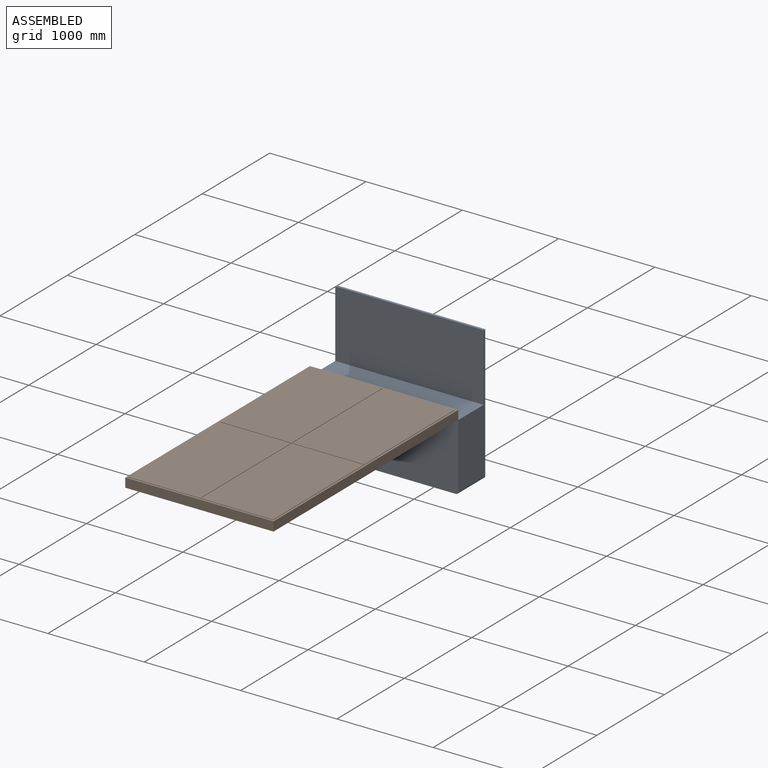
[diagram: assembled view]
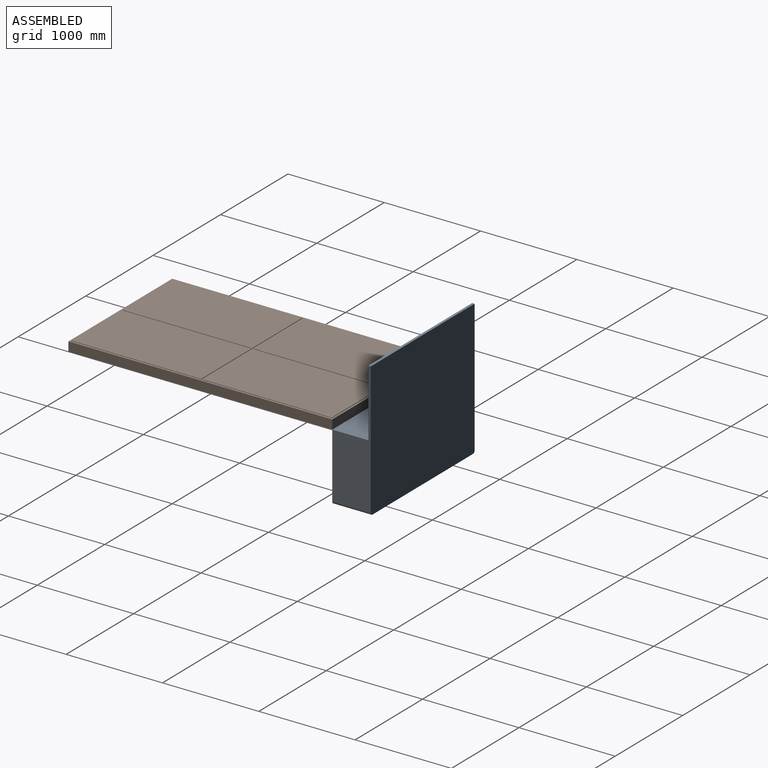
[diagram: assembled view, second angle]
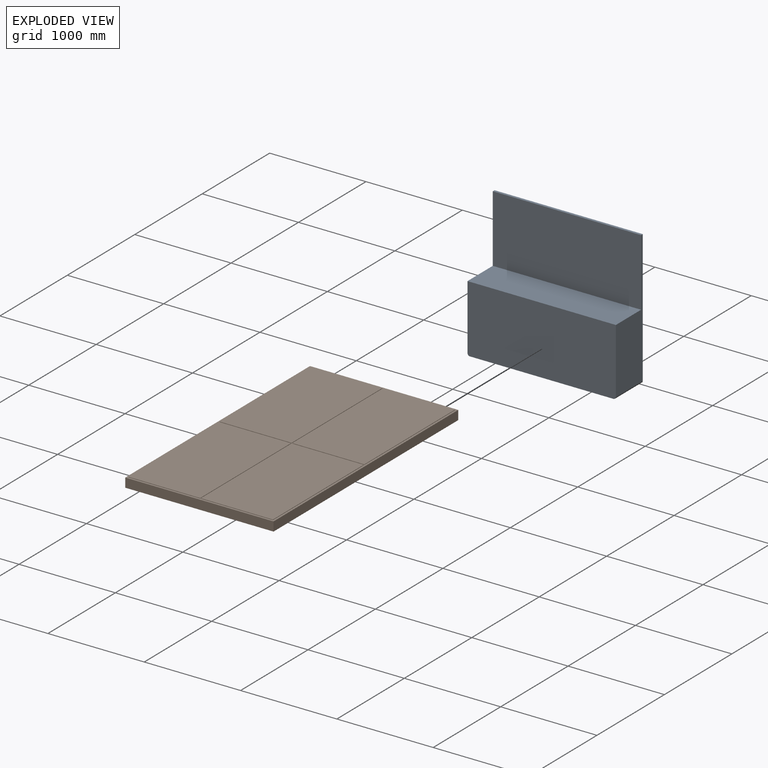
[diagram: exploded view]
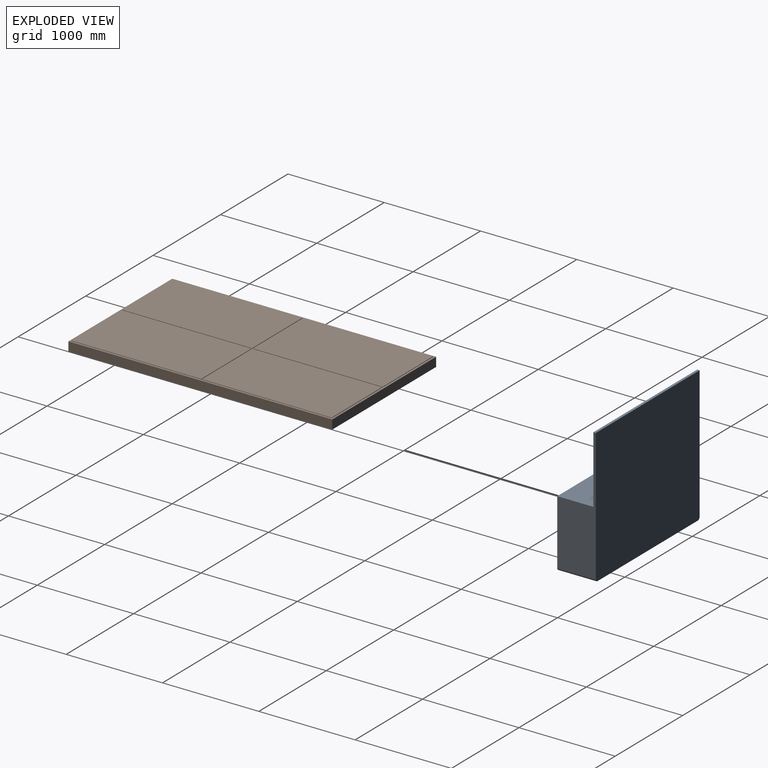
[diagram: exploded view, second angle]
ASSEMBLY  parts=2 mates=2
PART A: 10 faces, bbox 1540x400x1400 mm
  f0: plane 1374.6x400mm, normal (1,0,0), area 287620mm2, adj f1,f5,f6,f7,f8,f9
  f1: plane 1540x374.6mm, normal (0,0,1), area 576884mm2, adj f0,f2,f6,f8
  f2: plane 1374.6x400mm, normal (-1,0,0), area 287620mm2, adj f1,f3,f6,f7,f8,f9
  f3: cylinder r=25.4mm len=400mm, axis (0,1,0), area 15959.3mm2, adj f2,f4,f6,f7
  f4: plane 1489.2x400mm, normal (0,0,-1), area 595680mm2, adj f3,f5,f6,f7
  f5: cylinder r=25.4mm len=400mm, axis (0,1,0), area 15959.3mm2, adj f0,f4,f6,f7
  f6: plane 1540x700mm, normal (0,-1,0), area 1077723.1mm2, adj f0,f1,f2,f3,f4,f5
  f7: plane 1540x1400mm, normal (0,1,0), area 2155723.1mm2, adj f0,f2,f3,f4,f5,f9
  f8: plane 1540x700mm, normal (0,-1,0), area 1078000mm2, adj f0,f1,f2,f9
  f9: plane 1540x25.4mm, normal (0,0,1), area 39116mm2, adj f0,f2,f7,f8
PART B: 26 faces, bbox 2740x1540x100 mm
  f0: plane 1345x745mm, normal (0,0,1), area 1002025mm2, adj f1,f5,f14,f23
  f1: plane 745x5mm, normal (1,0,0), area 3725mm2, adj f0,f14,f18,f23
  f2: plane 745x5mm, normal (-1,0,0), area 3725mm2, adj f3,f6,f18,f24
  f3: plane 1345x745mm, normal (0,0,1), area 1002025mm2, adj f2,f4,f6,f24
  f4: plane 745x5mm, normal (1,0,0), area 3725mm2, adj f3,f6,f18,f24
  f5: plane 745x5mm, normal (-1,0,0), area 3725mm2, adj f0,f14,f18,f23
  f6: plane 1345x5mm, normal (0,1,0), area 6725mm2, adj f2,f3,f4,f18
  f7: plane 1345x5mm, normal (0,-1,0), area 6725mm2, adj f17,f18,f19,f20
  f8: plane 1345x745mm, normal (0,0,1), area 1002025mm2, adj f15,f16,f21,f22
  f9: plane 2740x95mm, normal (0,1,0), area 260300mm2, adj f10,f12,f13,f18
  f10: plane 1540x95mm, normal (-1,0,0), area 146300mm2, adj f9,f11,f13,f18
  f11: plane 2740x95mm, normal (0,-1,0), area 260300mm2, adj f10,f12,f13,f18
  f12: plane 1540x95mm, normal (1,0,0), area 146300mm2, adj f9,f11,f13,f18
  f13: plane 2740x1540mm, normal (0,0,-1), area 4219600mm2, adj f9,f10,f11,f12
  f14: plane 1345x5mm, normal (0,1,0), area 6725mm2, adj f0,f1,f5,f18
  f15: plane 745x5mm, normal (1,0,0), area 3725mm2, adj f8,f16,f18,f22
  f16: plane 1345x5mm, normal (0,-1,0), area 6725mm2, adj f8,f15,f18,f21
  f17: plane 745x5mm, normal (-1,0,0), area 3725mm2, adj f7,f18,f19,f25
  f18: plane 2740x1540mm, normal (0,0,1), area 211500mm2, adj f1,f2,f4,f5,f6,f7,f9,f10
  f19: plane 1345x745mm, normal (0,0,1), area 1002025mm2, adj f7,f17,f20,f25
  f20: plane 745x5mm, normal (1,0,0), area 3725mm2, adj f7,f18,f19,f25
  f21: plane 745x5mm, normal (-1,0,0), area 3725mm2, adj f8,f16,f18,f22
  f22: plane 1345x5mm, normal (0,1,0), area 6725mm2, adj f8,f15,f18,f21
  f23: plane 1345x5mm, normal (0,-1,0), area 6725mm2, adj f0,f1,f5,f18
  f24: plane 1345x5mm, normal (0,-1,0), area 6725mm2, adj f2,f3,f4,f18
  f25: plane 1345x5mm, normal (0,1,0), area 6725mm2, adj f17,f18,f19,f20
PLACE A t=(-443.44,3390.9,-667.71)mm
PLACE B rot(axis=(0,0,-1),90deg) t=(-443.44,1820.9,-317.71)mm
MATE parallel B.f13 <-> A.f1  axis (0,0,-1) through (-443.44,1820.9,-317.71)mm
MATE parallel A.f6 <-> B.f10  axis (0,-1,0) through (-443.44,3190.9,-667.62)mm
